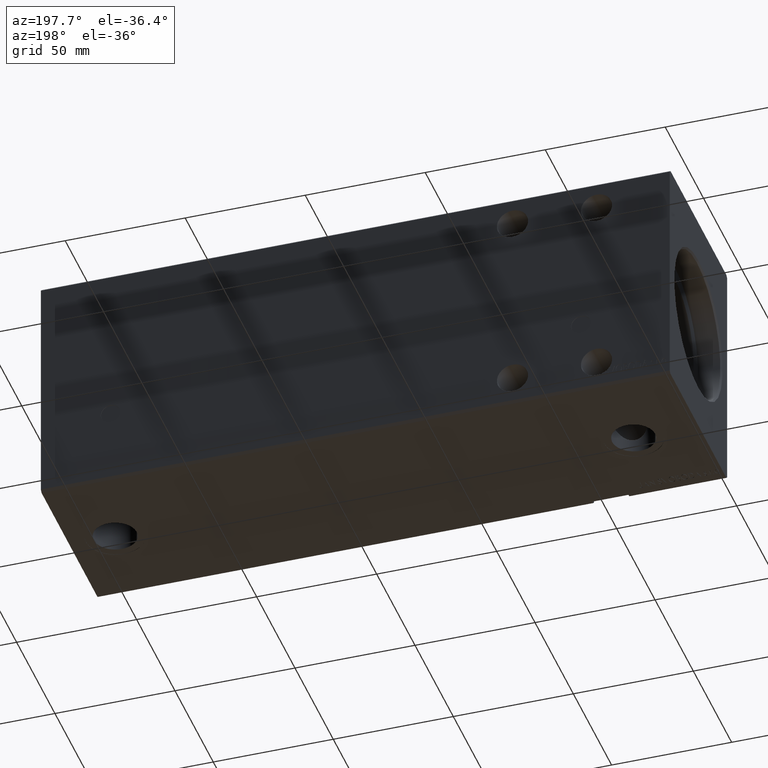
[diagram: clean part render]
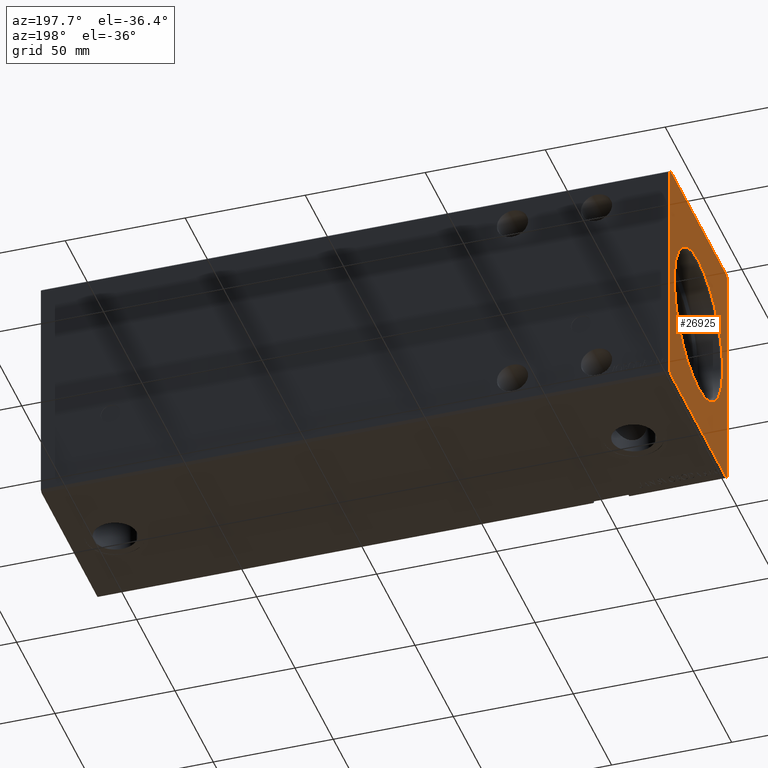
[diagram: same view with one face highlighted and labeled with its STEP entity id]
A machine part, auxiliary view. The second image highlights one B-rep face of the part: STEP entity #26925.
In plain terms, the highlighted planar face has unit normal (1, 0, 0).
Its self-contained STEP definition (entity closure, byte-faithful):
#384 = EDGE_CURVE ( 'NONE', #26608, #39825, #31190, .T. ) ;
#1092 = DIRECTION ( 'NONE',  ( 1.000000000000000000, 0.000000000000000000, 0.000000000000000000 ) ) ;
#1981 = FACE_OUTER_BOUND ( 'NONE', #26806, .T. ) ;
#2044 = EDGE_CURVE ( 'NONE', #6226, #9616, #18267, .T. ) ;
#2418 = CARTESIAN_POINT ( 'NONE',  ( 0.000000000000000000, -36.50000000000001421, 49.99999999999998579 ) ) ;
#3099 = CARTESIAN_POINT ( 'NONE',  ( 0.000000000000000000, 0.000000000000000000, 31.45000000000000639 ) ) ;
#3558 = LINE ( 'NONE', #22420, #15222 ) ;
#3574 = ORIENTED_EDGE ( 'NONE', *, *, #21168, .F. ) ;
#3781 = DIRECTION ( 'NONE',  ( 0.000000000000000000, -1.000000000000000000, -1.901066822988281457E-16 ) ) ;
#3856 = ORIENTED_EDGE ( 'NONE', *, *, #38304, .T. ) ;
#4999 = EDGE_CURVE ( 'NONE', #12002, #29855, #8226, .T. ) ;
#6226 = VERTEX_POINT ( 'NONE', #34790 ) ;
#7202 = VECTOR ( 'NONE', #21282, 1000.000000000000114 ) ;
#7981 = DIRECTION ( 'NONE',  ( 1.000000000000000000, 0.000000000000000000, 0.000000000000000000 ) ) ;
#8226 = LINE ( 'NONE', #30415, #7202 ) ;
#8285 = VECTOR ( 'NONE', #19707, 1000.000000000000114 ) ;
#8369 = CARTESIAN_POINT ( 'NONE',  ( 0.000000000000000000, 36.50000000000000711, -50.00000000000000000 ) ) ;
#8541 = ORIENTED_EDGE ( 'NONE', *, *, #2044, .T. ) ;
#8621 = CARTESIAN_POINT ( 'NONE',  ( 0.000000000000000000, -36.50000000000000711, -50.00000000000000000 ) ) ;
#9616 = VERTEX_POINT ( 'NONE', #3099 ) ;
#11722 = ORIENTED_EDGE ( 'NONE', *, *, #39046, .F. ) ;
#11906 = CARTESIAN_POINT ( 'NONE',  ( 0.000000000000000000, 37.50000000000000711, 49.00000000000000000 ) ) ;
#12002 = VERTEX_POINT ( 'NONE', #8369 ) ;
#12580 = CARTESIAN_POINT ( 'NONE',  ( 0.000000000000000000, -37.50000000000001421, -49.00000000000000000 ) ) ;
#12586 = EDGE_CURVE ( 'NONE', #29855, #12949, #20023, .T. ) ;
#12949 = VERTEX_POINT ( 'NONE', #11906 ) ;
#14027 = DIRECTION ( 'NONE',  ( 0.000000000000000000, 0.000000000000000000, 1.000000000000000000 ) ) ;
#14421 = LINE ( 'NONE', #2418, #40161 ) ;
#15222 = VECTOR ( 'NONE', #31561, 1000.000000000000000 ) ;
#15990 = CARTESIAN_POINT ( 'NONE',  ( 0.000000000000000000, 36.50000000000000711, 50.00000000000000000 ) ) ;
#16219 = VECTOR ( 'NONE', #3781, 1000.000000000000000 ) ;
#16533 = DIRECTION ( 'NONE',  ( 1.000000000000000000, 0.000000000000000000, 0.000000000000000000 ) ) ;
#16860 = VECTOR ( 'NONE', #27301, 1000.000000000000000 ) ;
#16929 = CIRCLE ( 'NONE', #38141, 31.45000000000000639 ) ;
#17512 = VECTOR ( 'NONE', #14027, 1000.000000000000000 ) ;
#18267 = CIRCLE ( 'NONE', #26879, 31.45000000000000639 ) ;
#19015 = CARTESIAN_POINT ( 'NONE',  ( 0.000000000000000000, 36.50000000000000711, 50.00000000000000000 ) ) ;
#19356 = VERTEX_POINT ( 'NONE', #19015 ) ;
#19707 = DIRECTION ( 'NONE',  ( 0.000000000000000000, -0.7071067811865474617, 0.7071067811865474617 ) ) ;
#20023 = LINE ( 'NONE', #20437, #17512 ) ;
#20437 = CARTESIAN_POINT ( 'NONE',  ( 0.000000000000000000, 37.50000000000000711, -49.00000000000000000 ) ) ;
#20610 = DIRECTION ( 'NONE',  ( 0.000000000000000000, 0.000000000000000000, -1.000000000000000000 ) ) ;
#20623 = DIRECTION ( 'NONE',  ( 0.000000000000000000, -0.7071067811865474617, -0.7071067811865474617 ) ) ;
#21168 = EDGE_CURVE ( 'NONE', #39825, #12002, #3558, .T. ) ;
#21282 = DIRECTION ( 'NONE',  ( 0.000000000000000000, 0.7071067811865474617, 0.7071067811865474617 ) ) ;
#22420 = CARTESIAN_POINT ( 'NONE',  ( 0.000000000000000000, -36.50000000000000711, -50.00000000000000000 ) ) ;
#22758 = DIRECTION ( 'NONE',  ( 0.000000000000000000, 0.000000000000000000, -1.000000000000000000 ) ) ;
#23739 = FACE_BOUND ( 'NONE', #33569, .T. ) ;
#23796 = LINE ( 'NONE', #40186, #16860 ) ;
#24816 = CARTESIAN_POINT ( 'NONE',  ( 0.000000000000000000, 37.50000000000000711, -49.00000000000000000 ) ) ;
#25442 = CARTESIAN_POINT ( 'NONE',  ( 0.000000000000000000, -37.50000000000001421, 48.99999999999998579 ) ) ;
#26384 = VERTEX_POINT ( 'NONE', #30942 ) ;
#26608 = VERTEX_POINT ( 'NONE', #12580 ) ;
#26806 = EDGE_LOOP ( 'NONE', ( #36895, #34178, #27010, #3574, #27936, #29481, #11722, #34363 ) ) ;
#26879 = AXIS2_PLACEMENT_3D ( 'NONE', #38744, #16533, #22758 ) ;
#26925 = ADVANCED_FACE ( 'NONE', ( #23739, #1981 ), #36397, .F. ) ;
#27010 = ORIENTED_EDGE ( 'NONE', *, *, #4999, .F. ) ;
#27027 = CARTESIAN_POINT ( 'NONE',  ( 0.000000000000000000, -37.50000000000001421, -49.00000000000000000 ) ) ;
#27169 = DIRECTION ( 'NONE',  ( 0.000000000000000000, 0.000000000000000000, -1.000000000000000000 ) ) ;
#27301 = DIRECTION ( 'NONE',  ( 0.000000000000000000, 0.000000000000000000, -1.000000000000000000 ) ) ;
#27460 = CARTESIAN_POINT ( 'NONE',  ( 0.000000000000000000, 0.000000000000000000, 0.000000000000000000 ) ) ;
#27936 = ORIENTED_EDGE ( 'NONE', *, *, #384, .F. ) ;
#28042 = LINE ( 'NONE', #40711, #8285 ) ;
#29370 = AXIS2_PLACEMENT_3D ( 'NONE', #27460, #7981, #20610 ) ;
#29481 = ORIENTED_EDGE ( 'NONE', *, *, #35371, .F. ) ;
#29855 = VERTEX_POINT ( 'NONE', #24816 ) ;
#30415 = CARTESIAN_POINT ( 'NONE',  ( 0.000000000000000000, 36.50000000000000711, -50.00000000000000000 ) ) ;
#30942 = CARTESIAN_POINT ( 'NONE',  ( 0.000000000000000000, -36.50000000000001421, 49.99999999999998579 ) ) ;
#31190 = LINE ( 'NONE', #27027, #38833 ) ;
#31561 = DIRECTION ( 'NONE',  ( 0.000000000000000000, 1.000000000000000000, 0.000000000000000000 ) ) ;
#32885 = VERTEX_POINT ( 'NONE', #25442 ) ;
#33408 = CARTESIAN_POINT ( 'NONE',  ( 0.000000000000000000, 0.000000000000000000, 0.000000000000000000 ) ) ;
#33569 = EDGE_LOOP ( 'NONE', ( #3856, #8541 ) ) ;
#34178 = ORIENTED_EDGE ( 'NONE', *, *, #12586, .F. ) ;
#34363 = ORIENTED_EDGE ( 'NONE', *, *, #37394, .F. ) ;
#34790 = CARTESIAN_POINT ( 'NONE',  ( 0.000000000000000000, 3.851514183318426405E-15, -31.45000000000000639 ) ) ;
#34887 = LINE ( 'NONE', #15990, #16219 ) ;
#35371 = EDGE_CURVE ( 'NONE', #32885, #26608, #23796, .T. ) ;
#36397 = PLANE ( 'NONE',  #29370 ) ;
#36895 = ORIENTED_EDGE ( 'NONE', *, *, #37304, .F. ) ;
#37304 = EDGE_CURVE ( 'NONE', #12949, #19356, #28042, .T. ) ;
#37394 = EDGE_CURVE ( 'NONE', #19356, #26384, #34887, .T. ) ;
#38141 = AXIS2_PLACEMENT_3D ( 'NONE', #33408, #1092, #27169 ) ;
#38304 = EDGE_CURVE ( 'NONE', #9616, #6226, #16929, .T. ) ;
#38744 = CARTESIAN_POINT ( 'NONE',  ( 0.000000000000000000, 0.000000000000000000, 0.000000000000000000 ) ) ;
#38833 = VECTOR ( 'NONE', #39696, 1000.000000000000114 ) ;
#39046 = EDGE_CURVE ( 'NONE', #26384, #32885, #14421, .T. ) ;
#39696 = DIRECTION ( 'NONE',  ( 0.000000000000000000, 0.7071067811865500152, -0.7071067811865451302 ) ) ;
#39825 = VERTEX_POINT ( 'NONE', #8621 ) ;
#40161 = VECTOR ( 'NONE', #20623, 1000.000000000000114 ) ;
#40186 = CARTESIAN_POINT ( 'NONE',  ( 0.000000000000000000, -37.50000000000001421, 48.99999999999998579 ) ) ;
#40711 = CARTESIAN_POINT ( 'NONE',  ( 0.000000000000000000, 37.50000000000000711, 49.00000000000000000 ) ) ;